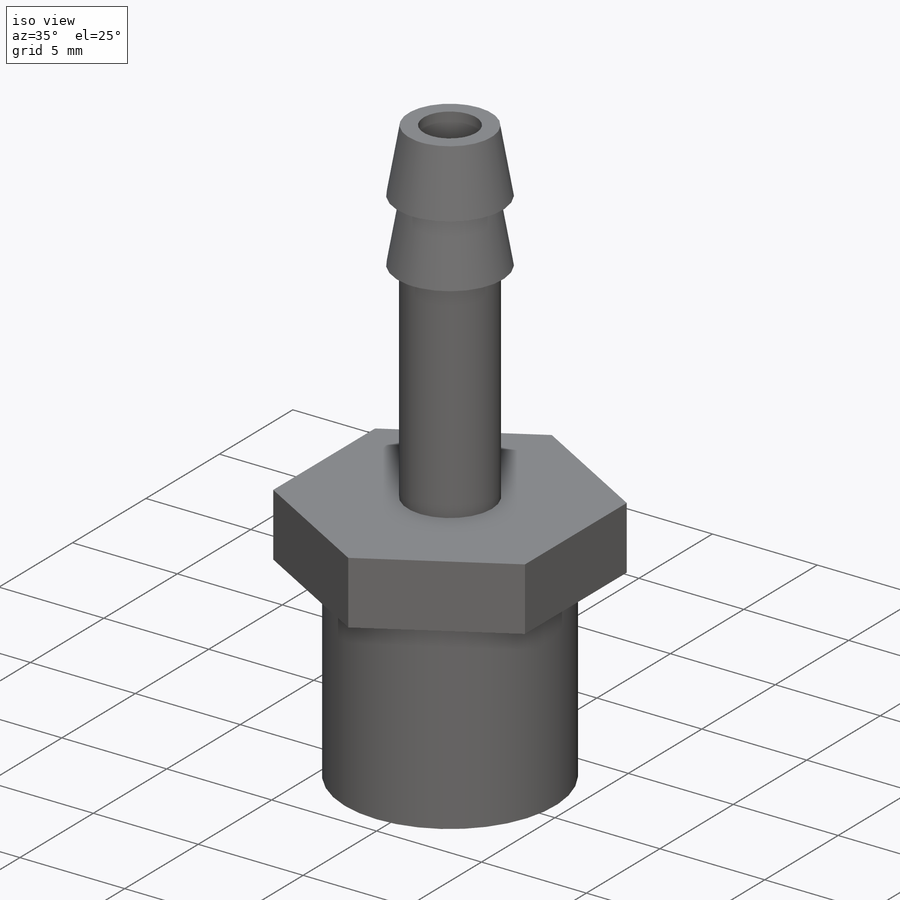
[diagram: iso view]
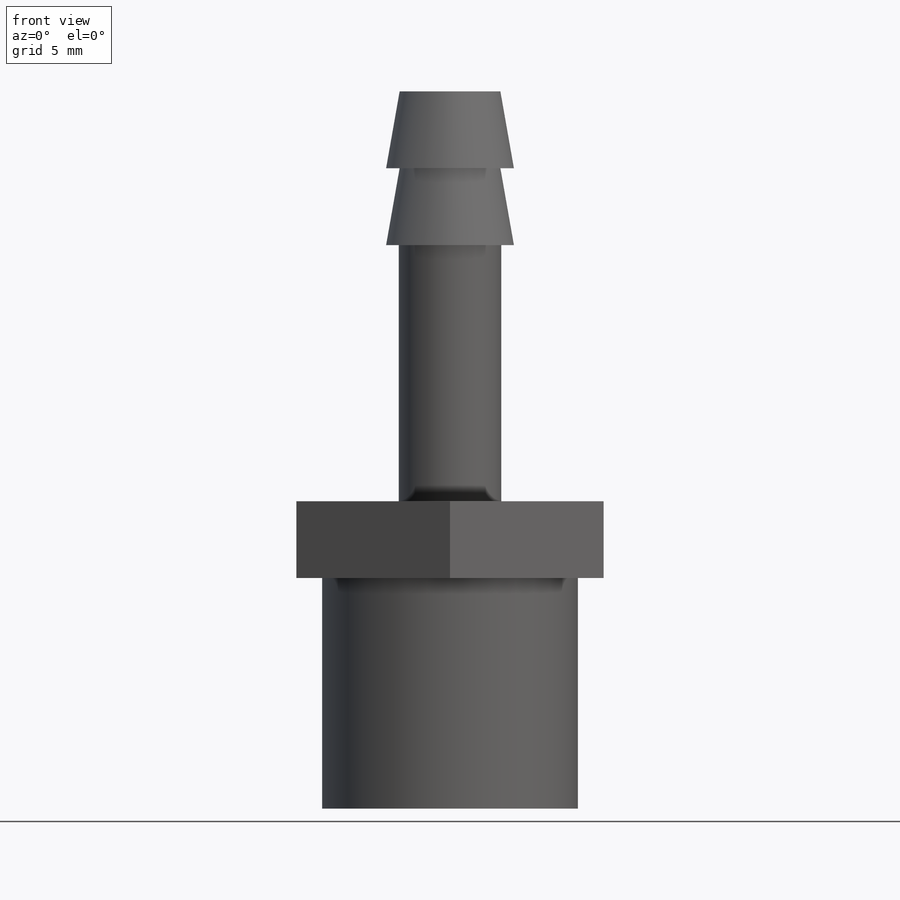
[diagram: front view]
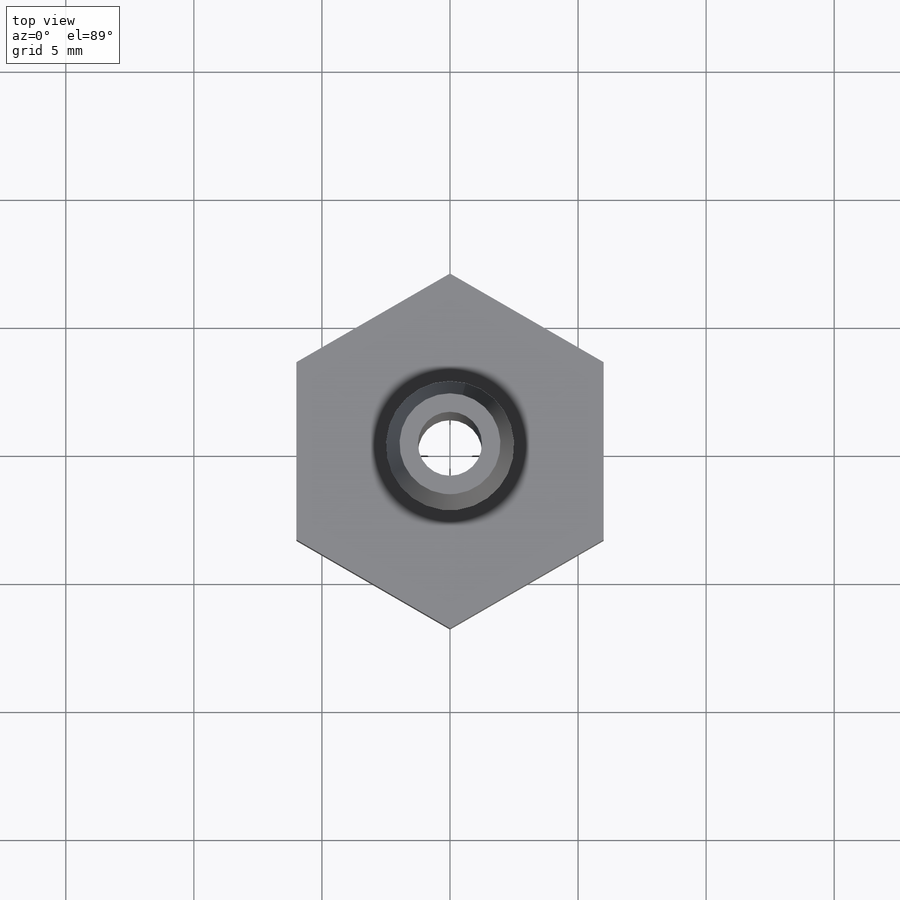
[diagram: top view]
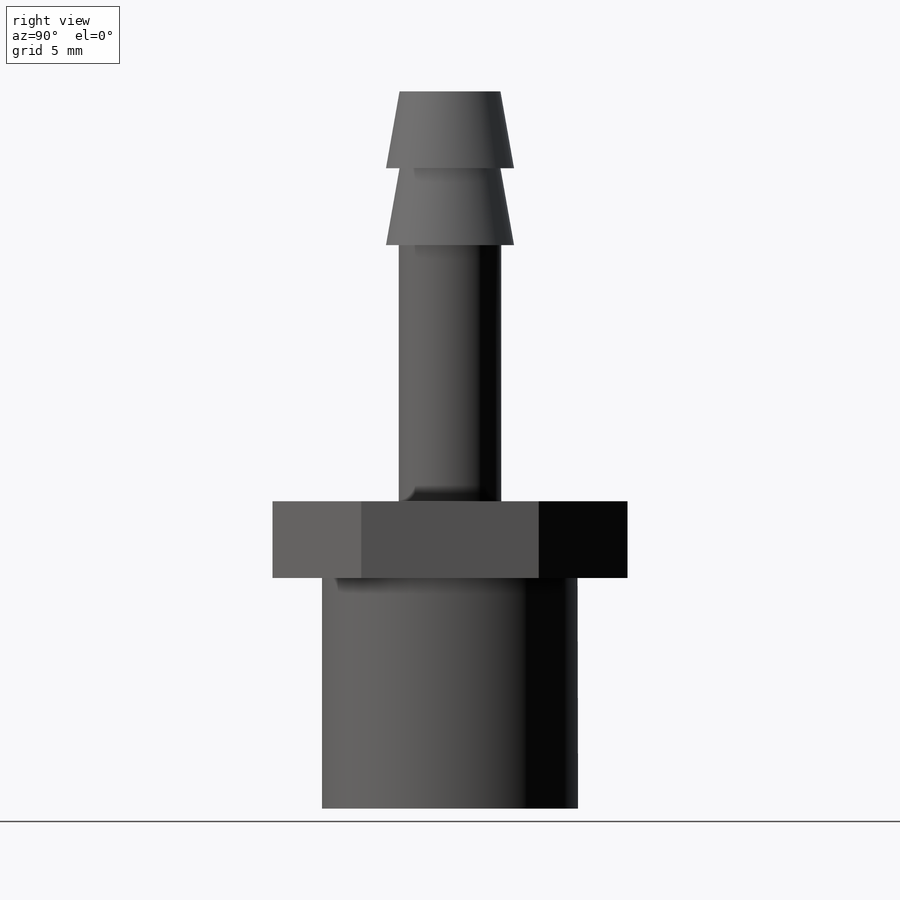
[diagram: right view]
SOLIDWORKS PART (.sldprt)
format: sldprt  version: not decoded by parser v0  size: 137,728 bytes
history: native  units: mm
features: sketch x6, extrude x5, plane x3, chamfer x2, material x1, cut_extrude x1 (+11 scaffold rows collapsed)
feature tree (29):
  scaffold x11  (default folders/planes/origin — collapsed)
  material  "Matériau <non spécifié>"
  plane  "Plan de face"
  plane  "Plan de dessus"
  plane  "Plan de droite"
  sketch  "Esquisse2"  dims[D1=12.0mm]
  extrude  "Extrusion1"  Depth=3mm
  sketch  "Esquisse3"  dims[D1=10.0mm D2=7.0mm]
  extrude  "Extrusion2"  Depth=9mm
  sketch  "Esquisse4"  dims[D1=4.0mm]
  extrude  "Extrusion3"  Depth=10mm
  sketch  "Esquisse5"  dims[D1=5.0mm]
  extrude  "Extrusion4"  Depth=3mm
  chamfer  "Chanfrein1"  Distance=3mm Angle=10deg
  sketch  "Esquisse6"  dims[D1=5.0mm]
  extrude  "Extrusion5"  Depth=3mm
  chamfer  "Chanfrein2"  Distance=3mm Angle=10deg
  sketch  "Esquisse7"  dims[D1=2.5mm]
  cut_extrude  "Extrusion6"  [1 undecoded]
decode coverage: 13 of 14 modeling features carry decoded parameters
note: 1 parameter value undecoded
note: suppression state not decoded; provenance and decode notes live in map.json
